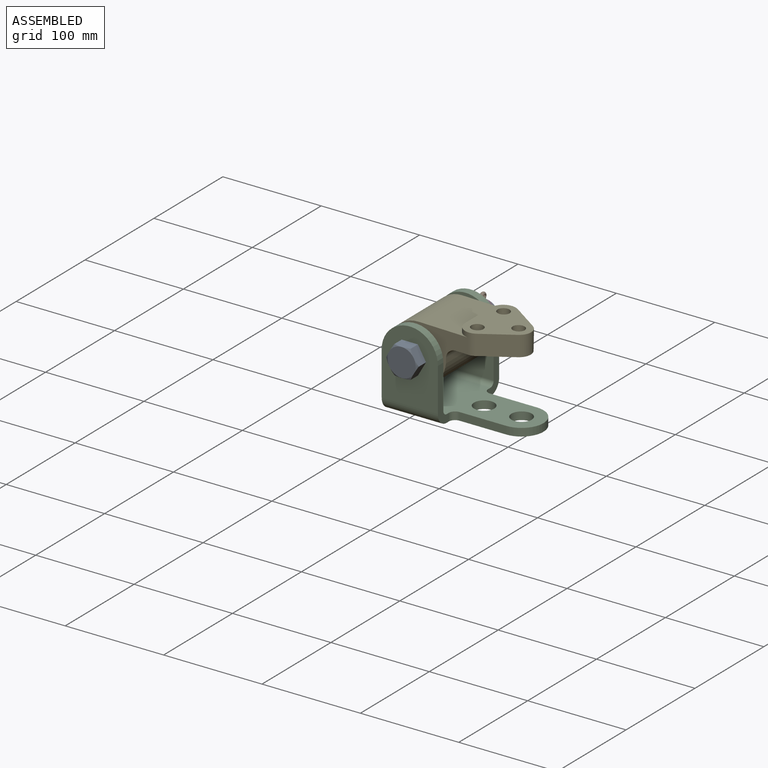
[diagram: assembled view]
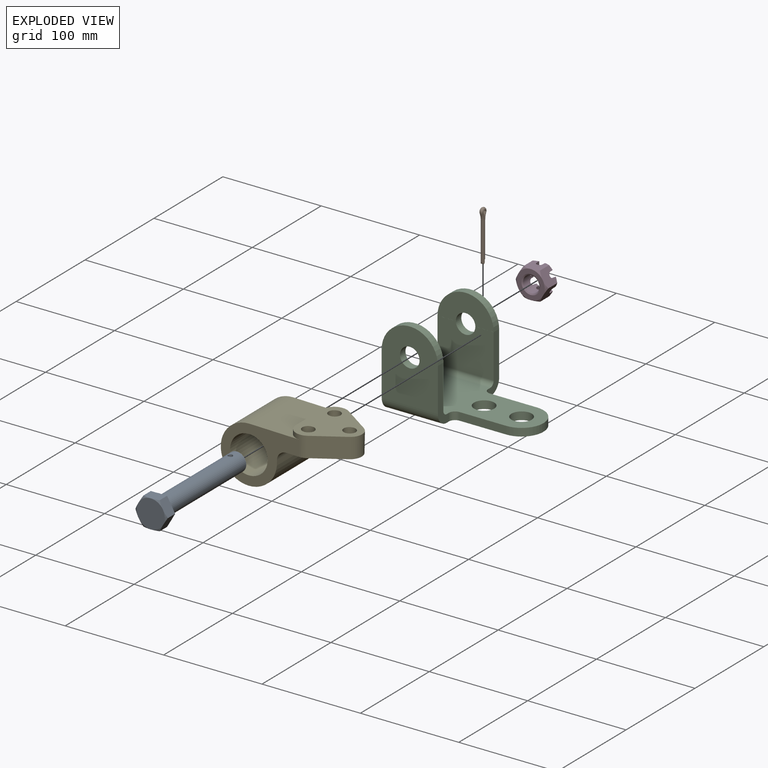
[diagram: exploded view]
GUIDED TOUR — MATED ASSEMBLY (Onshape document 50d87f92ce91cd4323465563, AutoMate assembly 50d87f92ce91cd4323465563_f01ec26a6eb874b433e99d02_183514ae5dcb3eb276379335_default)

This assembly has 5 components, labeled P0..P4 below (a component is one placed occurrence of a part; the same part can appear more than once), held together by 5 mates. A mate is a constraint between two components; its type names the relative motion it leaves free:
  CYLINDRICAL — leaves both rotation about and translation along the listed axis free,
  FASTENED — locks the two components together rigidly (no relative motion),
  PIN_SLOT — leaves rotation about the listed axis plus translation along a slot free,
  REVOLUTE — leaves rotation about the listed axis free (a hinge).
Axis/direction vectors are unit vectors and 'through' points are millimeter coordinates, both in the assembly's world frame.

MATES
  1. CYLINDRICAL "Cylindrical 1": P0 <-> P2, axis (0.000, -1.000, 0.000) through (-194.07, -107.38, 58.57) mm
  2. PIN_SLOT "Pin slot 1": P1 <-> P0, axis (0.000, 0.000, -1.000) through (-194.07, -4.70, 68.21) mm
  3. REVOLUTE "Revolute 1": P4 <-> P2, axis (0.000, 1.000, 0.000) through (-194.07, -96.43, 58.57) mm
  4. CYLINDRICAL "Cylindrical 2": P3 <-> P2, axis (0.000, -1.000, 0.000) through (-194.07, -17.83, 58.57) mm
  5. FASTENED "Fastened 1": P0 <-> P2, direction (0.000, 1.000, 0.000) through (-194.07, -108.27, 58.57) mm

ASSEMBLY ORDER
  1. P2 — the base component [order heuristic]
  2. P0 — core [order heuristic]
  3. P3 — core [order heuristic]
  4. P1 — core [order heuristic]
  5. P4 [order verified]
Order-tag legend:
  [order verified] — this step's position reverses a verified removal order: the component was checked to insert without passing through the ones already placed.
  [order heuristic] — the first 4 components form the assembly's core: parts whose collision-free extraction could not be verified, listed in mate-graph order.

Of the 5 components, 1 carries the full construction recipe — the FeatureScript program that regenerates the part's solid from scratch; the rest are supplied as boundary geometry only.
Each toured component is shown spotlighted twice — in the assembled view, then in the exploded view, where a leader line traces a displaced component back to its assembled socket (saturated green if recipe-attached, orange if geometry-only; every other component desaturated gray) — followed by its recipe or geometry summary and the mates that hold it.
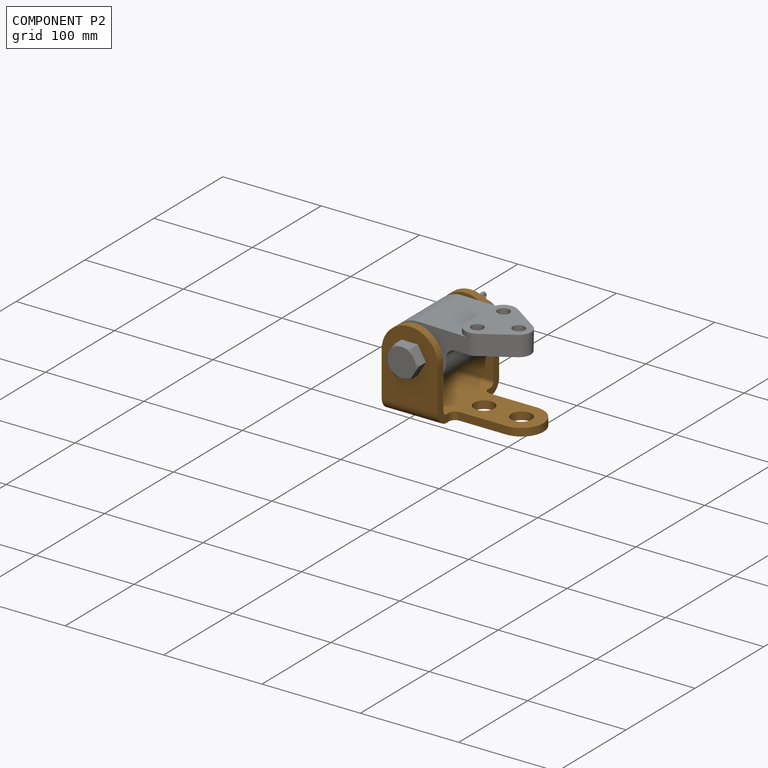
[diagram: component P2 — assembled]
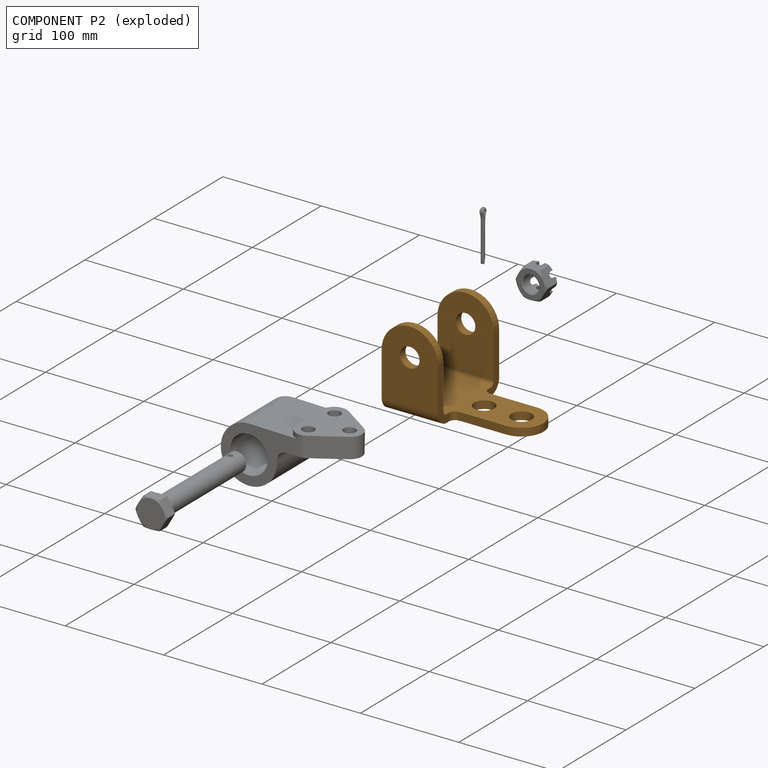
[diagram: component P2 — exploded]
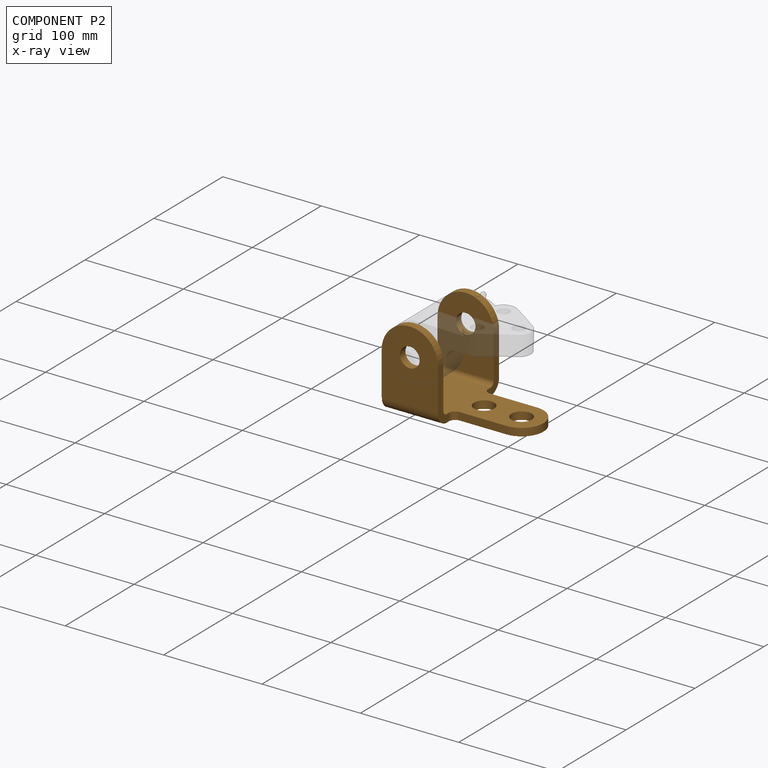
[diagram: component P2 — x-ray view]
COMPONENT P2 — geometry summary (no construction recipe available for this part):
  bounding box: 133.4 x 88.9 x 85.7 mm
  B-rep topology: 1 solid, 30 faces, 168 edges
  volume: 116907 mm^3 (12% of its bounding box)
  symmetry: mirror-symmetric across its y mid-plane
Held by: CYLINDRICAL mate "Cylindrical 1" to P0; REVOLUTE mate "Revolute 1" to P4; CYLINDRICAL mate "Cylindrical 2" to P3; FASTENED mate "Fastened 1" to P0.
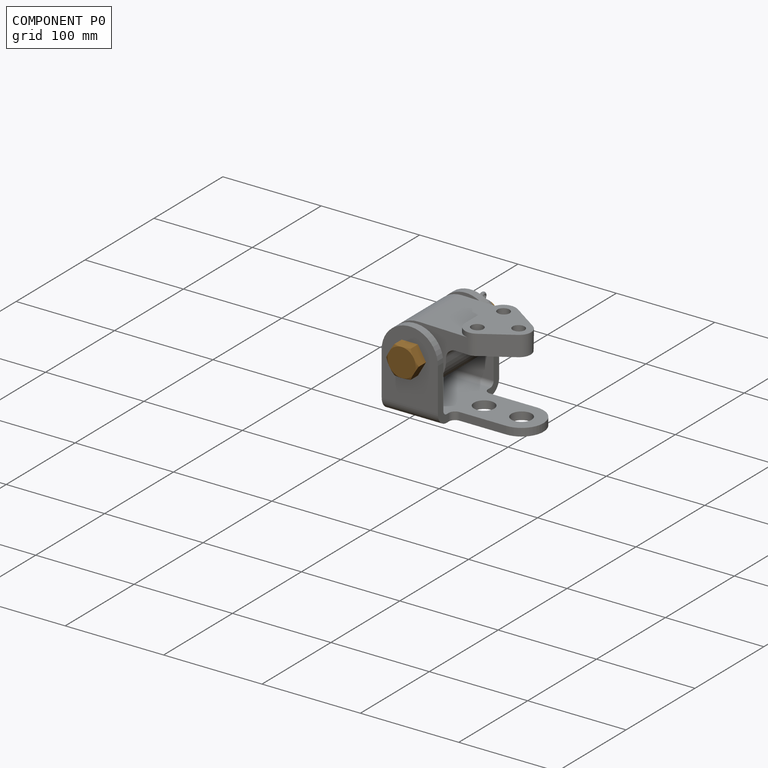
[diagram: component P0 — assembled]
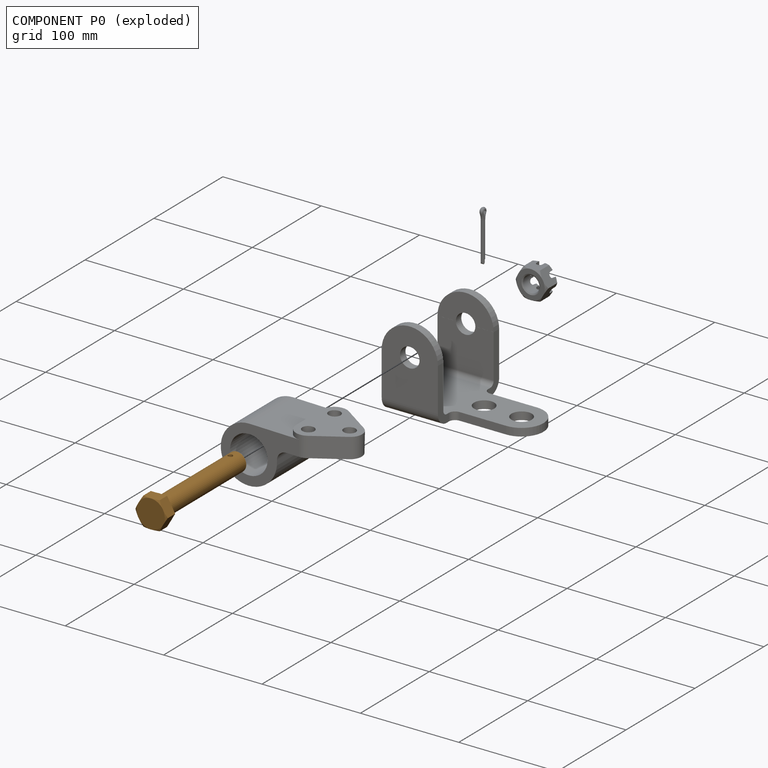
[diagram: component P0 — exploded]
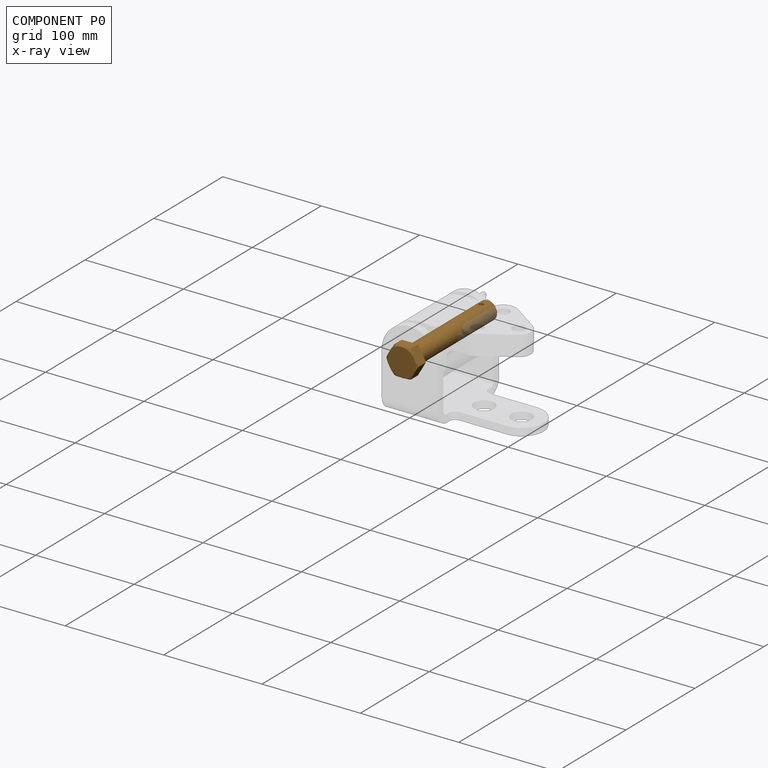
[diagram: component P0 — x-ray view]
COMPONENT P0 — geometry summary (no construction recipe available for this part):
  bounding box: 126.6 x 33.0 x 33.0 mm
  B-rep topology: 1 solid, 26 faces, 114 edges
  volume: 40801 mm^3 (30% of its bounding box)
  symmetry: 2-fold rotationally symmetric about the x axis; mirror-symmetric across its y mid-plane, z mid-plane
Held by: CYLINDRICAL mate "Cylindrical 1" to P2; PIN_SLOT mate "Pin slot 1" to P1; FASTENED mate "Fastened 1" to P2.
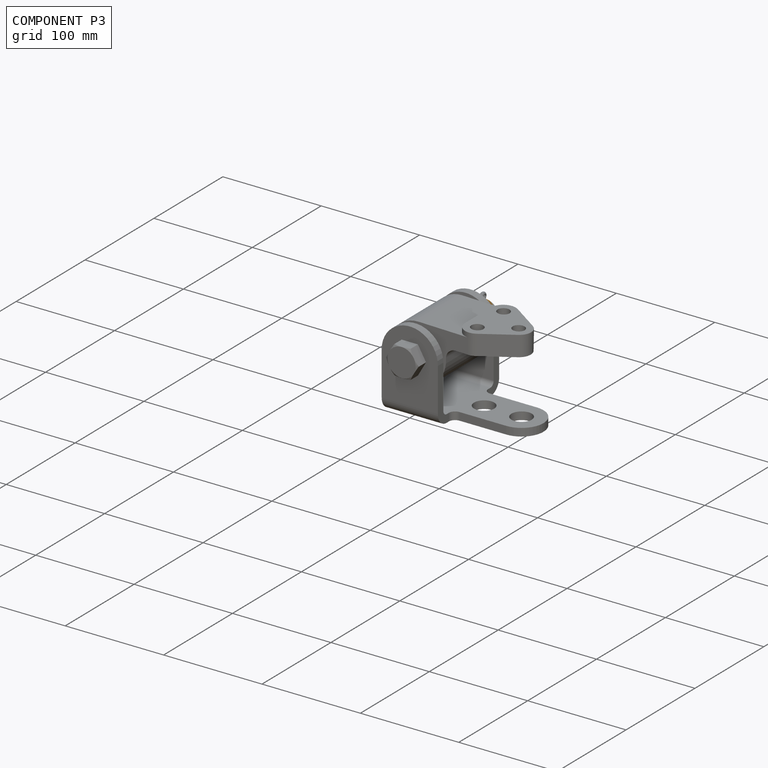
[diagram: component P3 — assembled]
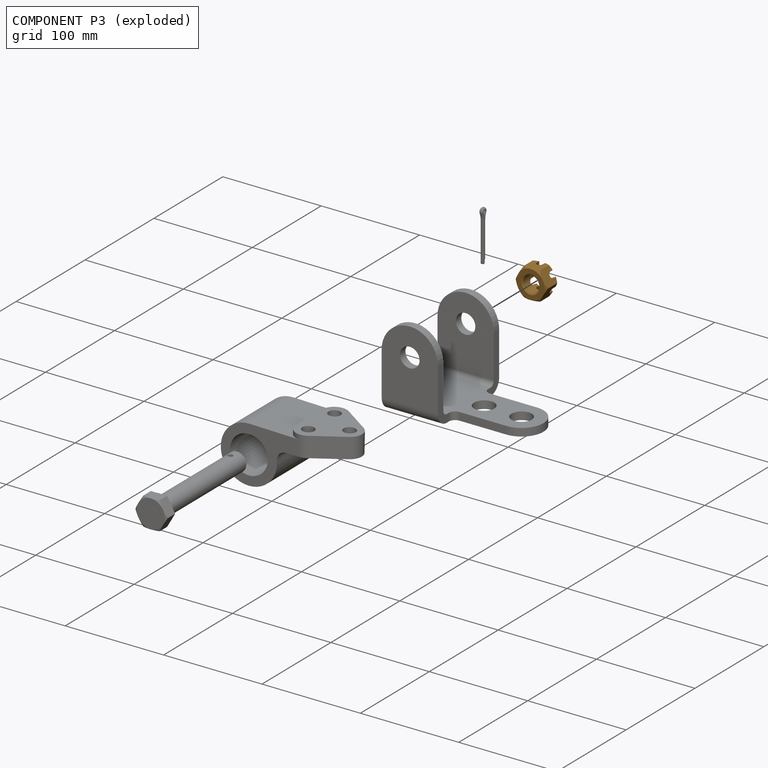
[diagram: component P3 — exploded]
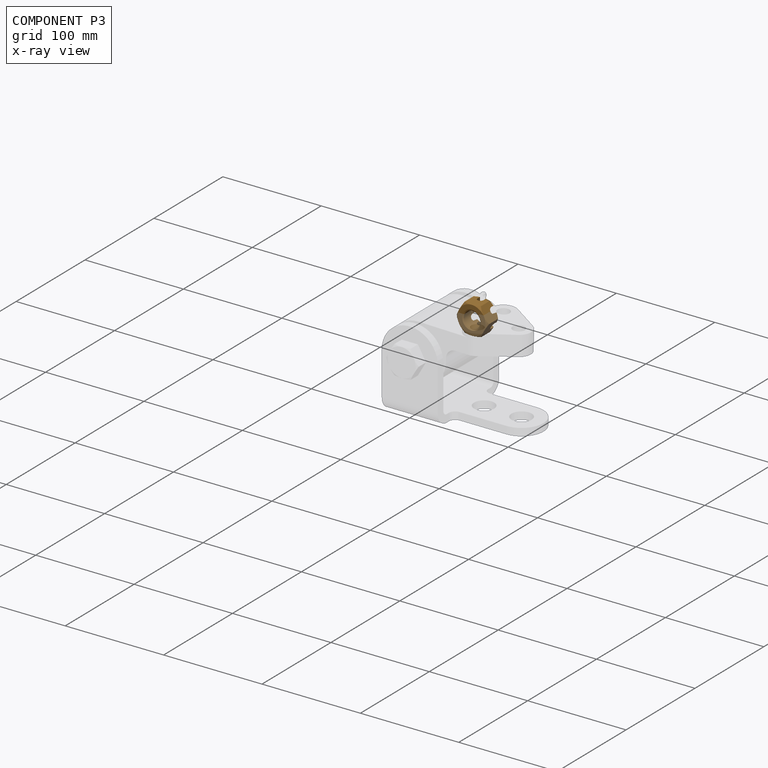
[diagram: component P3 — x-ray view]
COMPONENT P3 — geometry summary (no construction recipe available for this part):
  bounding box: 33.0 x 33.0 x 16.9 mm
  B-rep topology: 1 solid, 64 faces, 364 edges
  volume: 6784 mm^3 (37% of its bounding box)
  symmetry: 6-fold rotationally symmetric about the z axis; mirror-symmetric across its x mid-plane, y mid-plane
Held by: CYLINDRICAL mate "Cylindrical 2" to P2.
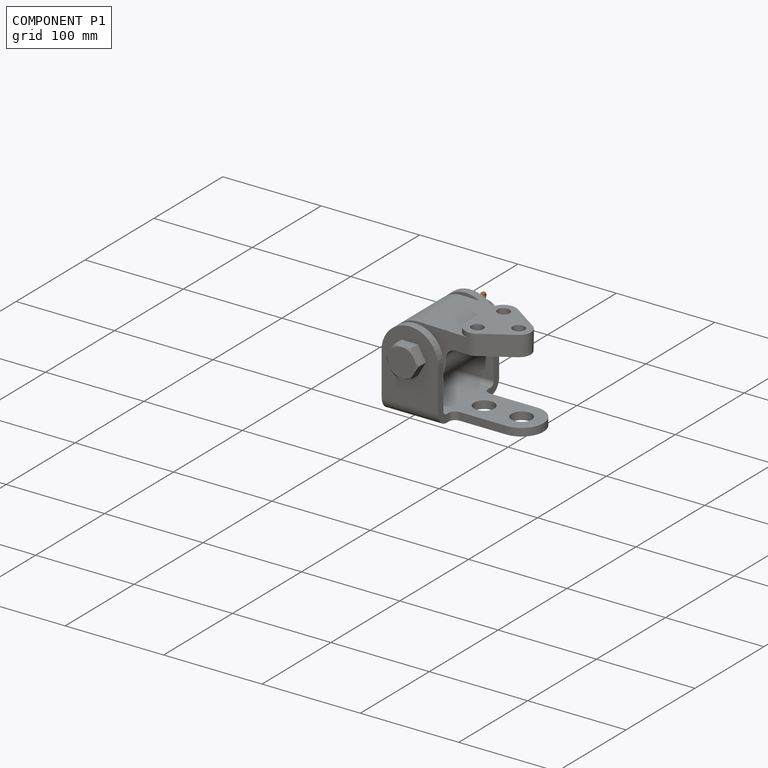
[diagram: component P1 — assembled]
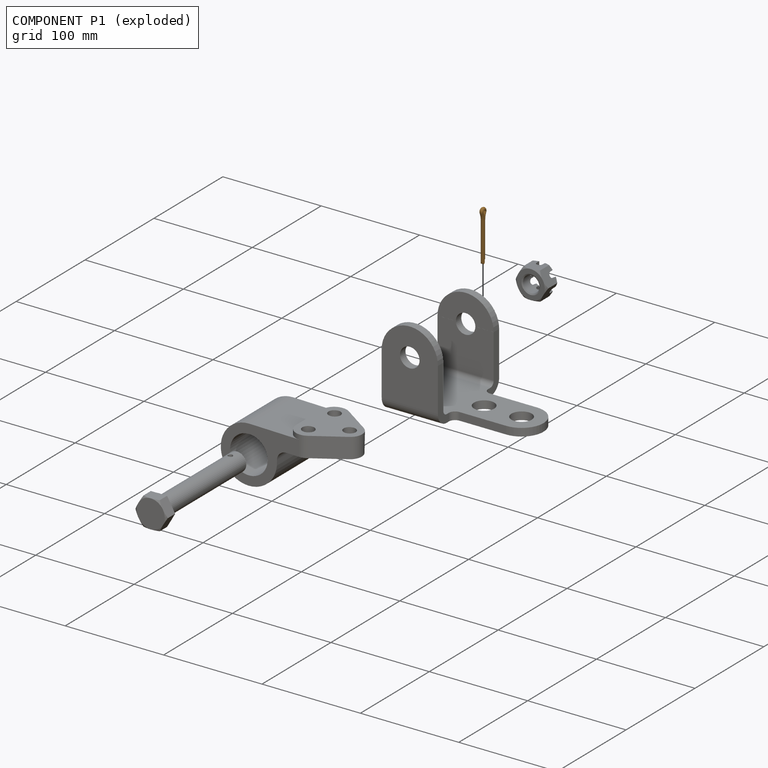
[diagram: component P1 — exploded]
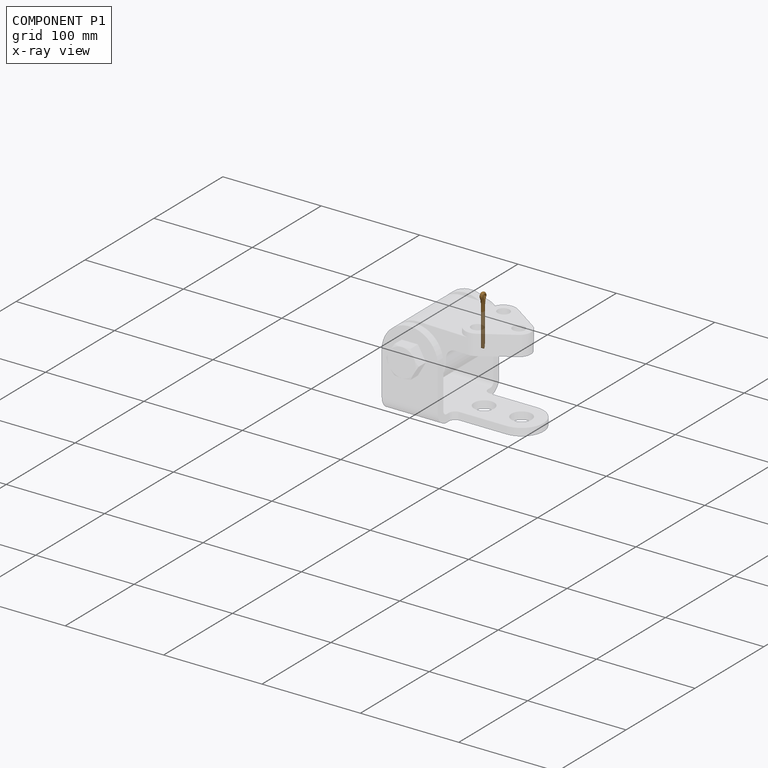
[diagram: component P1 — x-ray view]
COMPONENT P1 — geometry summary (no construction recipe available for this part):
  bounding box: 52.0 x 8.0 x 3.7 mm
  B-rep topology: 1 solid, 14 faces, 56 edges
  volume: 535 mm^3 (35% of its bounding box)
  symmetry: mirror-symmetric across its z mid-plane
Held by: PIN_SLOT mate "Pin slot 1" to P0.
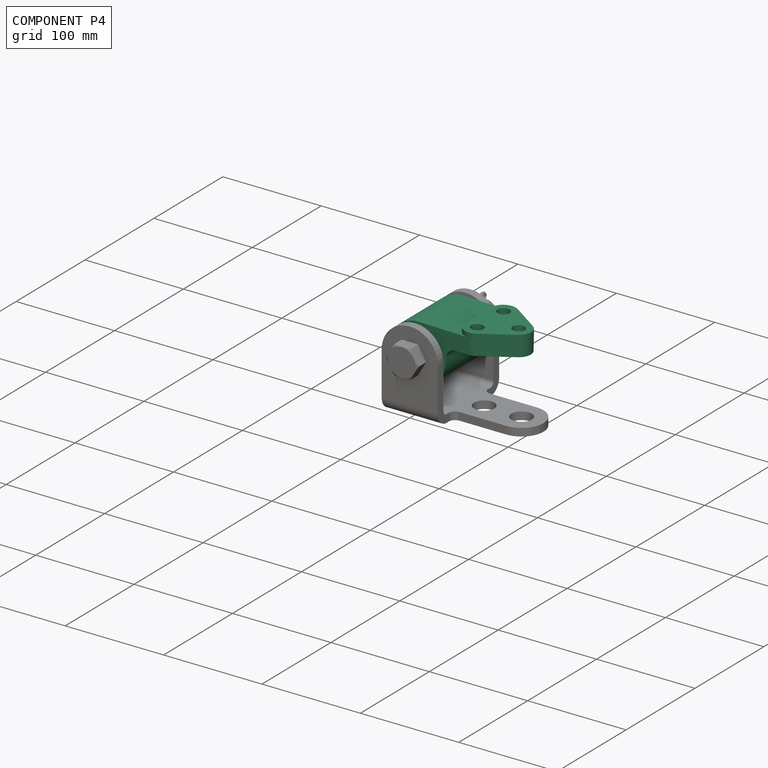
[diagram: component P4 — assembled]
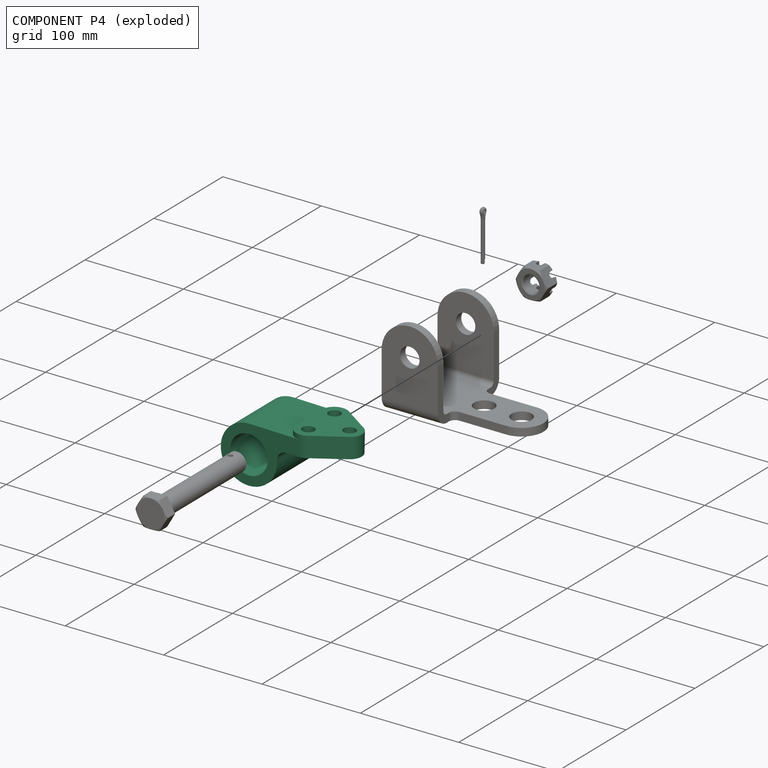
[diagram: component P4 — exploded]
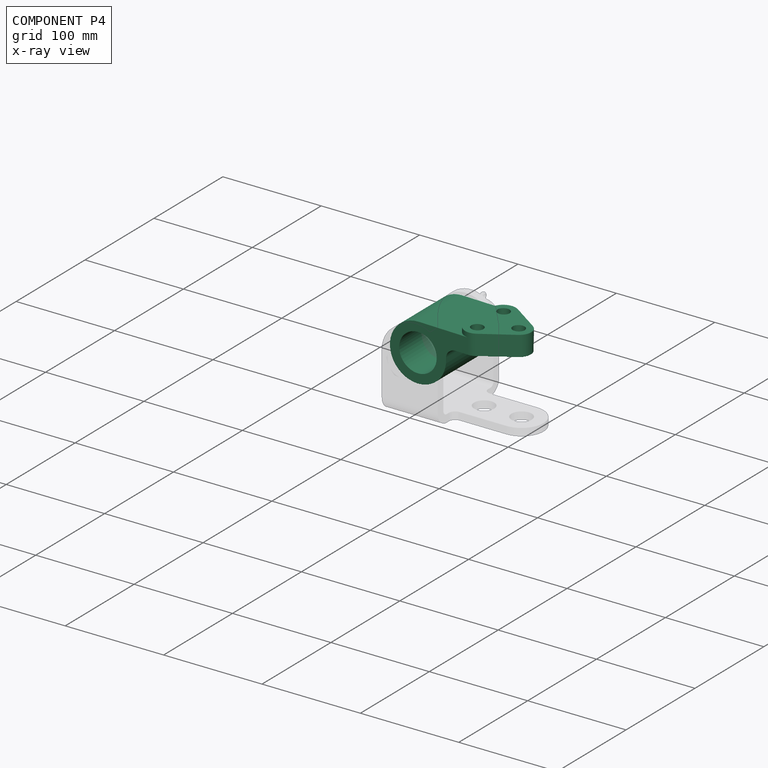
[diagram: component P4 — x-ray view]
COMPONENT P4 — recipe-attached (CADFS 00311506, mesh-verified: the recipe's output STEP matches this component's geometry to below the mesh-comparison resolution (tessellation chordal tolerance ~0.225 mm)).
Held by: REVOLUTE mate "Revolute 1" to P2.
Construction recipe (FeatureScript — the CAD program that rebuilds this solid; sketch coordinates are in the units given by the * unit suffixes, e.g. mm):

FeatureScript 1511;
import(path : "onshape/std/geometry.fs", version : "1511.0");
import(path : "onshape/std/common.fs", version : "1511.0");
const mm = millimeter;
const VERTEX = EntityType.VERTEX;
const EDGE = EntityType.EDGE;
const FACE = EntityType.FACE;
const BODY = EntityType.BODY;
function v(x, y){return vector(x, y);}
function OD(order){return orderDisambiguation(order);}
function OSD(set){return originalSetDisambiguation(set);}
function TD(topology){return topologyDisambiguation(topology);}
function TDD(query){return trueDependencyDisambiguation(query);}
function sQuery(a, b, c) {return sketchEntityQuery(a, b, c);}

annotation { "Feature Type Name" : "Feature", "Feature Type Description" : "" }
export const myFeature = defineFeature(function(context is Context, id is Id, definition is map)
    precondition{}
    {
        {
            var Q0;
            Q0=qCreatedBy(makeId("Front.planeOp"),FACE);
            var sketch = newSketch(context, id + "F0", { "sketchPlane" : qUnion([Q0])});
            skArc(sketch, "E0", {"start": v(0, 28.58) * mm, "mid": v(-19.35, -21.03) * mm, "end": v(28.48, 2.38) * mm});
            skLineSegment(sketch, "E1", {"start": v(0, 28.58) * mm, "end": v(79.5, 28.58) * mm});
            skCircle(sketch, "E2", {"center": v(0, 0) * mm, "radius": 19.05 * mm});
            skArc(sketch, "E3", {"start": v(37.97, 12.7) * mm, "mid": v(30.96, 9.62) * mm, "end": v(28.48, 2.38) * mm});
            skLineSegment(sketch, "E4", {"start": v(79.5, 28.58) * mm, "end": v(79.5, 12.7) * mm});
            skLineSegment(sketch, "E5", {"start": v(79.5, 12.7) * mm, "end": v(37.97, 12.7) * mm});
            skSolve(sketch);
        }
        {
            var Q0;
            Q0 = qSketchRegion(id + "F0", true);
            extrude(context, id + "F1", {"entities" : qUnion([Q0]), "depth" : 63.5 * mm});
        }
        {
            var Q0;
            Q0 = qSketchRegion(id + "F0", true);
            extrude(context, id + "F2", {"entities" : qUnion([Q0]), "operationType" : NewBodyOperationType.ADD, "depth" : 63.5 * mm});
        }
        {
            var Q0;
            Q0=makeQuery(id+"F1.opExtrude","SWEPT_FACE",FACE,{"disambiguationData":[OSD([sQuery(id+"F0.wireOp",EDGE,"E1")])]});
            var sketch = newSketch(context, id + "F3", { "sketchPlane" : qUnion([Q0])});
            skLineSegment(sketch, "E6.0.0", {"start": v(79.5, 0) * mm, "end": v(0, 0) * mm});
            skLineSegment(sketch, "E6.0.1", {"start": v(0, 0) * mm, "end": v(0, -63.5) * mm});
            skLineSegment(sketch, "E6.0.2", {"start": v(0, -63.5) * mm, "end": v(79.5, -63.5) * mm});
            skLineSegment(sketch, "E6.0.3", {"start": v(79.5, -63.5) * mm, "end": v(79.5, 0) * mm});
            skLineSegment(sketch, "E7", {"start": v(0, -31.75) * mm, "end": v(79.5, -31.75) * mm, "construction": true});
            skArc(sketch, "E8", {"start": v(57.82, -2.12) * mm, "mid": v(44.8, -1.5) * mm, "end": v(38.1, -12.7) * mm});
            skArc(sketch, "E9", {"start": v(38.1, -50.8) * mm, "mid": v(44.8, -62) * mm, "end": v(57.82, -61.38) * mm});
            skArc(sketch, "E10", {"start": v(79.5, -44.45) * mm, "mid": v(92.2, -31.75) * mm, "end": v(79.5, -19.05) * mm});
            skLineSegment(sketch, "E11", {"start": v(38.1, -12.7) * mm, "end": v(38.1, -50.8) * mm});
            skLineSegment(sketch, "E12", {"start": v(57.82, -61.38) * mm, "end": v(86.53, -42.33) * mm});
            skLineSegment(sketch, "E13", {"start": v(57.82, -2.12) * mm, "end": v(86.53, -21.17) * mm});
            skSolve(sketch);
        }
        {
            var Q0;
            {var subQ0=sQuery(id+"F3.wireOp",EDGE,"E10");var subQ1=sQuery(id+"F3.wireOp",EDGE,"E6.0.3");var subQ2=makeQuery(id+"F3.imprint","INTERSECT",VERTEX,{"disambiguationData":[OD(0.0)],"derivedFrom":[subQ1,subQ0]});Q0=makeQuery(id+"F3.imprint","IMPRINT",FACE,{"disambiguationData":[TD([[makeQuery(id+"F3.imprint","IMPRINT",EDGE,{"disambiguationData":[TD([[subQ2,1.0]])],"derivedFrom":subQ1}),-1.0]])]});}
            var Q1;
            {var subQ0=sQuery(id+"F3.wireOp",EDGE,"E10");var subQ1=sQuery(id+"F3.wireOp",EDGE,"E6.0.3");var subQ2=makeQuery(id+"F3.imprint","INTERSECT",VERTEX,{"disambiguationData":[OD(1.0)],"derivedFrom":[subQ1,subQ0]});Q1=makeQuery(id+"F3.imprint","IMPRINT",FACE,{"disambiguationData":[TD([[makeQuery(id+"F3.imprint","IMPRINT",EDGE,{"disambiguationData":[TD([[subQ2,-1.0]])],"derivedFrom":subQ1}),-1.0]])]});}
            var Q2;
            {var subQ0=sQuery(id+"F3.wireOp",EDGE,"E10");var subQ1=sQuery(id+"F3.wireOp",EDGE,"E6.0.3");var subQ2=makeQuery(id+"F3.imprint","INTERSECT",VERTEX,{"disambiguationData":[OD(0.0)],"derivedFrom":[subQ1,subQ0]});Q2=makeQuery(id+"F3.imprint","IMPRINT",FACE,{"disambiguationData":[TD([[makeQuery(id+"F3.imprint","IMPRINT",EDGE,{"disambiguationData":[TD([[subQ2,-1.0]])],"derivedFrom":subQ1}),-1.0]])]});}
            var Q3;
            {var subQ13=sQuery(id+"F3.wireOp",EDGE,"E11");Q3=makeQuery(id+"F3.imprint","IMPRINT",FACE,{"disambiguationData":[TD([[makeQuery(id+"F3.imprint","IMPRINT",EDGE,{"derivedFrom":subQ13}),1.0]])]});}
            extrude(context, id + "F4", {"entities" : qUnion([Q0, Q1, Q2, Q3]), "operationType" : NewBodyOperationType.ADD, "depth" : 4.78 * mm});
        }
        {
            var Q0;
            {var subQ2=sQuery(id+"F0.wireOp",EDGE,"E1");var subQ3=makeQuery(id+"F1.opExtrude","SWEPT_FACE",FACE,{"disambiguationData":[OSD([subQ2])]});var subQ4=sQuery(id+"F3.wireOp",EDGE,"E13");Q0=makeQuery(id+"F4.boolean.opBoolean","SPLIT",FACE,{"disambiguationData":[TD([makeQuery(id+"F4.opExtrude","SWEPT_FACE",FACE,{"disambiguationData":[OSD([subQ4])]})])],"derivedFrom":subQ3});}
            var Q1;
            {var subQ1=sQuery(id+"F3.wireOp",EDGE,"E12");var subQ3=sQuery(id+"F0.wireOp",EDGE,"E1");var subQ4=makeQuery(id+"F1.opExtrude","SWEPT_FACE",FACE,{"disambiguationData":[OSD([subQ3])]});Q1=makeQuery(id+"F4.boolean.opBoolean","SPLIT",FACE,{"disambiguationData":[TD([makeQuery(id+"F4.opExtrude","SWEPT_FACE",FACE,{"disambiguationData":[OSD([subQ1])]})])],"derivedFrom":subQ4});}
            extrude(context, id + "F5", {"entities" : qUnion([Q0, Q1]), "operationType" : NewBodyOperationType.REMOVE, "oppositeDirection" : true, "depth" : 25.4 * mm});
        }
        {
            var Q0;
            Q0=makeQuery(id+"F4.opExtrude","CAP_FACE",FACE,{"disambiguationData":[OSD([sQuery(id+"F3.wireOp",EDGE,"E8"),sQuery(id+"F3.wireOp",EDGE,"E9"),sQuery(id+"F3.wireOp",EDGE,"E10"),sQuery(id+"F3.wireOp",EDGE,"E11"),sQuery(id+"F3.wireOp",EDGE,"E12"),sQuery(id+"F3.wireOp",EDGE,"E13")])],"isStart":true});
            extrude(context, id + "F6", {"entities" : qUnion([Q0]), "operationType" : NewBodyOperationType.ADD, "depth" : 15.88 * mm});
        }
        {
            var Q0;
            Q0=makeQuery(id+"F4.opExtrude","CAP_FACE",FACE,{"disambiguationData":[OSD([sQuery(id+"F3.wireOp",EDGE,"E8"),sQuery(id+"F3.wireOp",EDGE,"E9"),sQuery(id+"F3.wireOp",EDGE,"E10"),sQuery(id+"F3.wireOp",EDGE,"E11"),sQuery(id+"F3.wireOp",EDGE,"E12"),sQuery(id+"F3.wireOp",EDGE,"E13")])],"isStart":false});
            var sketch = newSketch(context, id + "F7", { "sketchPlane" : qUnion([Q0])});
            skArc(sketch, "E14.0.0", {"start": v(38.1, -50.8) * mm, "mid": v(44.8, -62) * mm, "end": v(57.82, -61.38) * mm});
            skLineSegment(sketch, "E14.0.1", {"start": v(57.82, -61.38) * mm, "end": v(86.53, -42.33) * mm});
            skArc(sketch, "E14.0.2", {"start": v(86.53, -42.33) * mm, "mid": v(92.2, -31.75) * mm, "end": v(86.53, -21.17) * mm});
            skLineSegment(sketch, "E14.0.3", {"start": v(86.53, -21.17) * mm, "end": v(57.82, -2.12) * mm});
            skArc(sketch, "E14.0.4", {"start": v(57.82, -2.12) * mm, "mid": v(44.8, -1.5) * mm, "end": v(38.1, -12.7) * mm});
            skLineSegment(sketch, "E14.0.5", {"start": v(38.1, -12.7) * mm, "end": v(38.1, -50.8) * mm});
            skCircle(sketch, "E15", {"center": v(50.8, -12.7) * mm, "radius": 6.13 * mm});
            skCircle(sketch, "E16", {"center": v(50.8, -50.8) * mm, "radius": 6.13 * mm});
            skCircle(sketch, "E17", {"center": v(79.5, -31.75) * mm, "radius": 6.13 * mm});
            skSolve(sketch);
        }
        {
            var Q0;
            Q0=makeQuery(id+"F7.imprint","IMPRINT",FACE,{"disambiguationData":[TD([[makeQuery(id+"F7.imprint","IMPRINT",EDGE,{"derivedFrom":sQuery(id+"F7.wireOp",EDGE,"E15")}),1.0]])]});
            var Q1;
            Q1=makeQuery(id+"F7.imprint","IMPRINT",FACE,{"disambiguationData":[TD([[makeQuery(id+"F7.imprint","IMPRINT",EDGE,{"derivedFrom":sQuery(id+"F7.wireOp",EDGE,"E17")}),1.0]])]});
            var Q2;
            Q2=makeQuery(id+"F7.imprint","IMPRINT",FACE,{"disambiguationData":[TD([[makeQuery(id+"F7.imprint","IMPRINT",EDGE,{"derivedFrom":sQuery(id+"F7.wireOp",EDGE,"E16")}),1.0]])]});
            extrude(context, id + "F8", {"entities" : qUnion([Q0, Q1, Q2]), "operationType" : NewBodyOperationType.REMOVE, "oppositeDirection" : true, "depth" : 25.4 * mm});
        }
    });
PROVENANCE & LICENSES
Assembly (occurrences, transforms, mates, per-part STEP geometry): AutoMate dataset, Zenodo record 7776208, CC0.
Construction recipes: CADFS (HuggingFace VladPyatov/CADFS, CC-BY-4.0, layered over the ABC dataset), FeatureScript reconstruction programs keyed by ABC model id.
Join: ABC meta listings map ABC model id -> Onshape documentId; within a shared document, parts are matched by geometric signature (bounding-box dims + volume at 0.1% relative tolerance, exact B-rep face/solid counts).
Verification: 1 of this assembly's 5 components carries a recipe attachment, and every attachment is mesh-verified: the CADFS STEP and the AutoMate member STEP were compared as meshes in their shared local frame (symmetric sampled-point-to-mesh distance); worst across the 1 attachment: below the mesh-comparison resolution (tessellation chordal tolerance ~0.225 mm) on a 150 mm part.
Renders: orthographic iso camera (az 35 / el 25); the floor grid conveys scale (grid pitch printed in each image; no ruler). In the exploded view each component is displaced by its stored offset vector: the offsets alone carry the explosion direction (mate normal/axis signs are not orientation cues and do not encode it), and separation distances are assigned per mate-chain, not proportionally to assembly-order depth.
